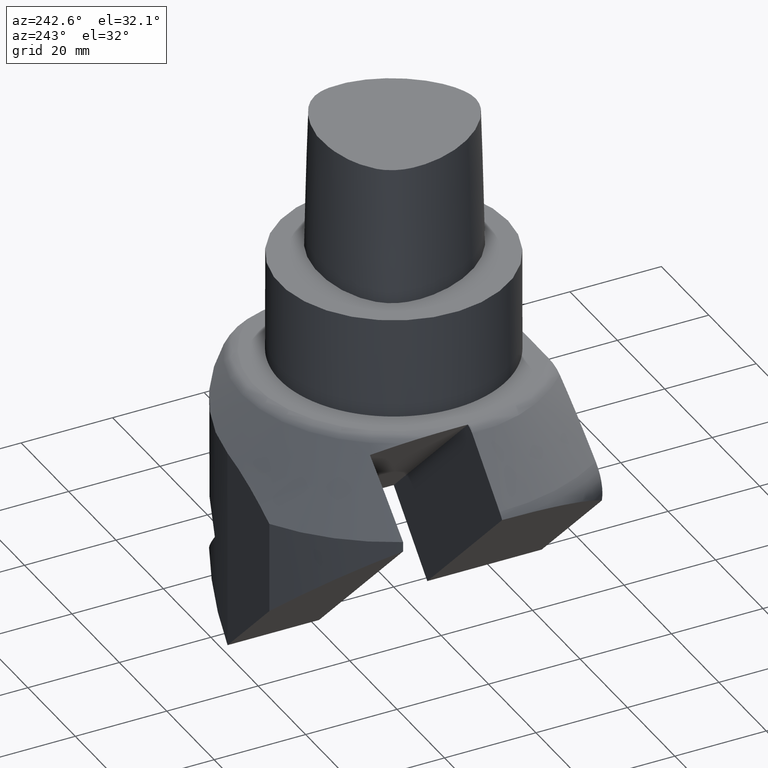
[diagram: clean part render]
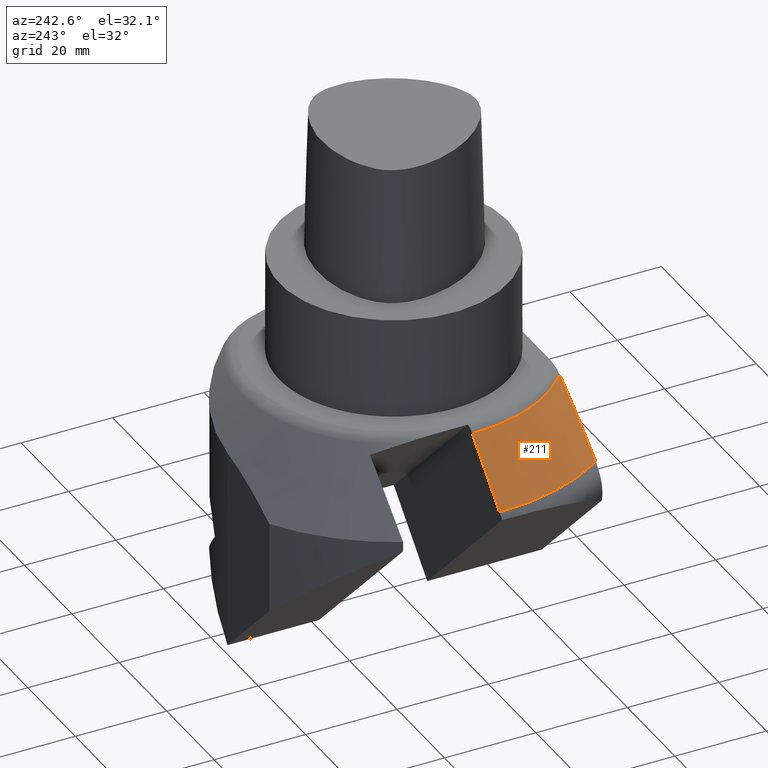
[diagram: same view with one face highlighted and labeled with its STEP entity id]
A machine part, auxiliary view. The second image highlights one B-rep face of the part: STEP entity #211.
In plain terms, the highlighted conical surface has half-angle 45 deg.
Its self-contained STEP definition (entity closure, byte-faithful):
#134=EDGE_CURVE('240[2]',#377,#378,#379,.T.);
#153=EDGE_CURVE('240[2]',#408,#377,#409,.T.);
#211=ADVANCED_FACE('240[2]',(#494),#495,.T.);
#255=EDGE_CURVE('240[2]',#411,#378,#550,.T.);
#300=EDGE_CURVE('240[2]',#411,#408,#603,.T.);
#377=VERTEX_POINT('',#686);
#378=VERTEX_POINT('',#687);
#379=(B_SPLINE_CURVE(2,(#689,#690,#691),.UNSPECIFIED.,.F.,.F.)B_SPLINE_CURVE_WITH_KNOTS((3,3),(-373.978020780172,-271.559833221413),.UNSPECIFIED.)RATIONAL_B_SPLINE_CURVE((8.17653887348629,7.61882561721952,6.82834340981449))BOUNDED_CURVE()REPRESENTATION_ITEM('')GEOMETRIC_REPRESENTATION_ITEM()CURVE());
#408=VERTEX_POINT('',#787);
#409=CIRCLE('',#788,33.1714171834653);
#411=VERTEX_POINT('',#791);
#494=FACE_OUTER_BOUND('',#1019,.T.);
#495=CONICAL_SURFACE('',#1020,38.9141307565133,0.785399917008567);
#550=CIRCLE('',#1152,44.6568443295613);
#603=LINE('',#1661,#1662);
#686=CARTESIAN_POINT('',(-21.8023603758513,-25.0000000000201,-23.1715679043789));
#687=CARTESIAN_POINT('',(-37.0031585878106,-25.0,-34.6569547686));
#689=CARTESIAN_POINT('',(-21.8023603758447,-25.0000000000001,-23.1715679043594));
#690=CARTESIAN_POINT('',(-28.2811382543179,-25.0,-27.4298169238933));
#691=CARTESIAN_POINT('',(-37.0031585878105,-25.0,-34.6569547685999));
#787=CARTESIAN_POINT('',(-33.1714171834653,-1.75581684987468E-014,-23.1715679043789));
#788=AXIS2_PLACEMENT_3D('',#1808,#1809,#1810);
#791=CARTESIAN_POINT('',(-44.6568443295613,-2.065822342446E-014,-34.6569547686));
#1019=EDGE_LOOP('',(#1899,#1900,#1901,#1902));
#1020=AXIS2_PLACEMENT_3D('',#1903,#1904,#1905);
#1152=AXIS2_PLACEMENT_3D('',#1973,#1974,#1975);
#1661=CARTESIAN_POINT('',(-38.9141307565133,-2.065822342446E-014,-28.9142613364894));
#1662=VECTOR('',#2042,1.0);
#1808=CARTESIAN_POINT('',(1.41884932326615E-015,4.37391914460091E-014,-23.1715679043789));
#1809=DIRECTION('',(0.0,0.0,1.0));
#1810=DIRECTION('',(0.0,-1.0,0.0));
#1899=ORIENTED_EDGE('',*,*,#134,.F.);
#1900=ORIENTED_EDGE('',*,*,#153,.F.);
#1901=ORIENTED_EDGE('',*,*,#300,.F.);
#1902=ORIENTED_EDGE('',*,*,#255,.T.);
#1903=CARTESIAN_POINT('',(1.77048787977209E-015,5.45792333663211E-014,-28.9142613364894));
#1904=DIRECTION('',(-0.0,-0.0,-1.0));
#1905=DIRECTION('',(0.0,-1.0,0.0));
#1973=CARTESIAN_POINT('',(2.12212643627802E-015,6.54192752866332E-014,-34.6569547686));
#1974=DIRECTION('',(0.0,0.0,1.0));
#1975=DIRECTION('',(0.0,-1.0,0.0));
#2042=DIRECTION('',(0.707108021175774,5.73375134255461E-032,0.707105541195147));